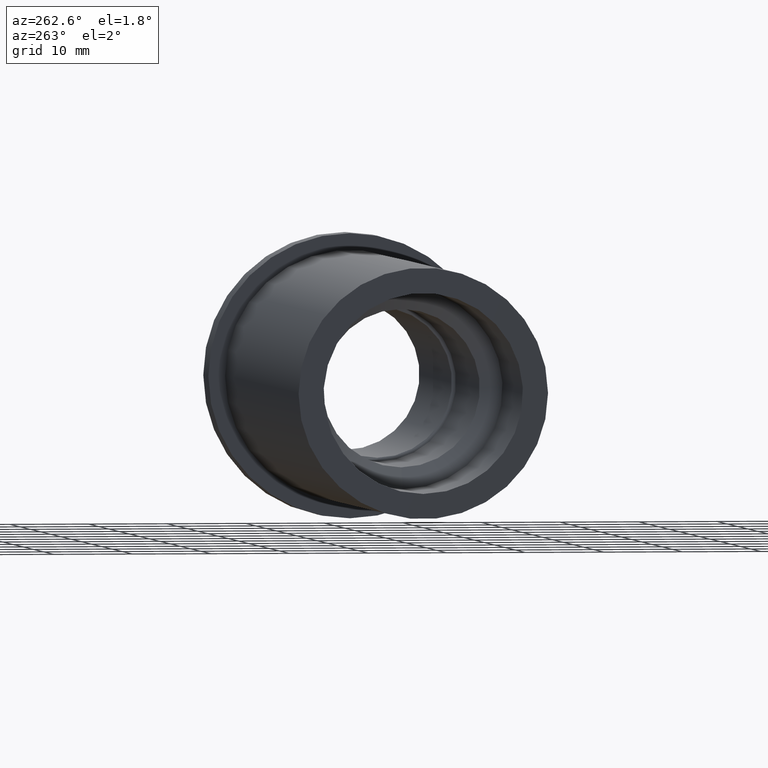
[diagram: clean part render]
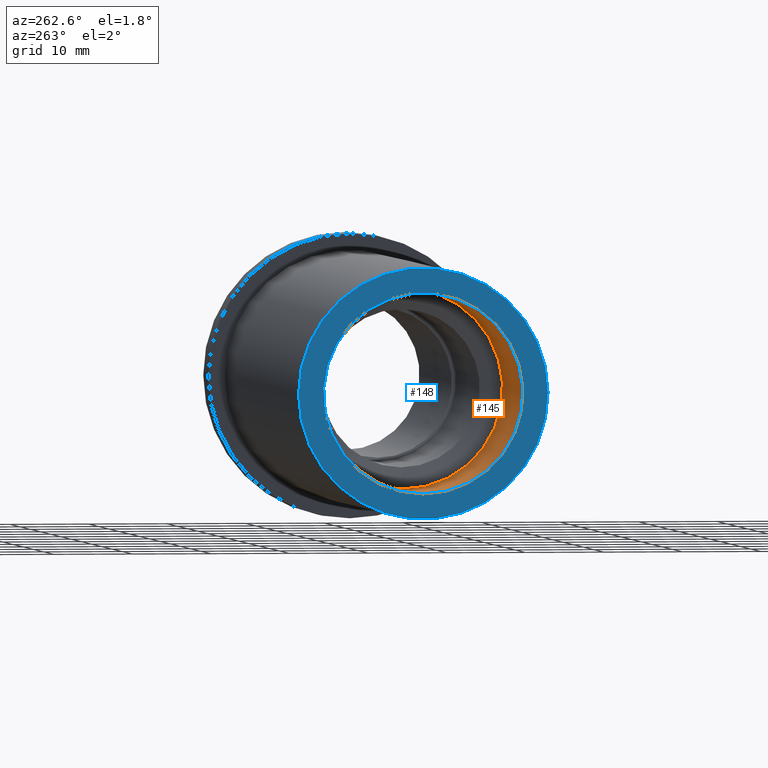
[diagram: same view with the hole feature highlighted: cylindrical wall and planar end face, labeled with their STEP entity ids]
A machine part, auxiliary view. The highlighted faces form one hole feature of diameter 25.3762 mm: the cylindrical wall (entity #145, orange) and its adjacent planar end face (entity #148, blue) — they share a circular edge in the B-rep.
Wall:
#27=FACE_OUTER_BOUND('',#37,.T.);
#37=EDGE_LOOP('',(#118,#119,#120,#121));
#50=LINE('',#270,#57);
#57=VECTOR('',#225,12.688101);
#65=CIRCLE('',#183,12.688101);
#66=CIRCLE('',#185,12.688101);
#76=VERTEX_POINT('',#264);
#77=VERTEX_POINT('',#268);
#90=EDGE_CURVE('',#76,#76,#65,.T.);
#92=EDGE_CURVE('',#77,#77,#66,.T.);
#93=EDGE_CURVE('',#77,#76,#50,.T.);
#118=ORIENTED_EDGE('',*,*,#92,.F.);
#119=ORIENTED_EDGE('',*,*,#93,.T.);
#120=ORIENTED_EDGE('',*,*,#90,.F.);
#121=ORIENTED_EDGE('',*,*,#93,.F.);
#138=CYLINDRICAL_SURFACE('',#184,12.688101);
#145=ADVANCED_FACE('',(#27),#138,.F.);
#183=AXIS2_PLACEMENT_3D('',#265,#218,#219);
#184=AXIS2_PLACEMENT_3D('',#267,#221,#222);
#185=AXIS2_PLACEMENT_3D('',#269,#223,#224);
#218=DIRECTION('center_axis',(-1.,0.,0.));
#219=DIRECTION('ref_axis',(0.,0.,1.));
#221=DIRECTION('center_axis',(-1.,0.,0.));
#222=DIRECTION('ref_axis',(0.,0.,1.));
#223=DIRECTION('center_axis',(1.,0.,0.));
#224=DIRECTION('ref_axis',(0.,0.,1.));
#225=DIRECTION('',(1.,0.,0.));
#264=CARTESIAN_POINT('',(-57.,-1.55384422769083E-15,-12.688101));
#265=CARTESIAN_POINT('Origin',(-57.,0.,0.));
#267=CARTESIAN_POINT('Origin',(-67.,0.,0.));
#268=CARTESIAN_POINT('',(-77.,-1.55384422769083E-15,-12.688101));
#269=CARTESIAN_POINT('Origin',(-77.,0.,0.));
#270=CARTESIAN_POINT('',(-67.,-1.55384422769083E-15,-12.688101));
End face:
#16=FACE_BOUND('',#42,.T.);
#19=PLANE('',#190);
#30=FACE_OUTER_BOUND('',#41,.T.);
#41=EDGE_LOOP('',(#128));
#42=EDGE_LOOP('',(#129));
#66=CIRCLE('',#185,12.688101);
#69=CIRCLE('',#191,15.875);
#77=VERTEX_POINT('',#268);
#80=VERTEX_POINT('',#279);
#92=EDGE_CURVE('',#77,#77,#66,.T.);
#97=EDGE_CURVE('',#80,#80,#69,.T.);
#128=ORIENTED_EDGE('',*,*,#97,.F.);
#129=ORIENTED_EDGE('',*,*,#92,.T.);
#148=ADVANCED_FACE('',(#30,#16),#19,.T.);
#185=AXIS2_PLACEMENT_3D('',#269,#223,#224);
#190=AXIS2_PLACEMENT_3D('',#278,#235,#236);
#191=AXIS2_PLACEMENT_3D('',#280,#237,#238);
#223=DIRECTION('center_axis',(1.,0.,0.));
#224=DIRECTION('ref_axis',(0.,0.,1.));
#235=DIRECTION('center_axis',(-1.,0.,0.));
#236=DIRECTION('ref_axis',(0.,0.,1.));
#237=DIRECTION('center_axis',(1.,0.,0.));
#238=DIRECTION('ref_axis',(0.,0.,-1.));
#268=CARTESIAN_POINT('',(-77.,-1.55384422769083E-15,-12.688101));
#269=CARTESIAN_POINT('Origin',(-77.,0.,0.));
#278=CARTESIAN_POINT('Origin',(-77.,15.875,0.));
#279=CARTESIAN_POINT('',(-77.,-15.8750000000001,-1.94412679364643E-15));
#280=CARTESIAN_POINT('Origin',(-77.,0.,0.));